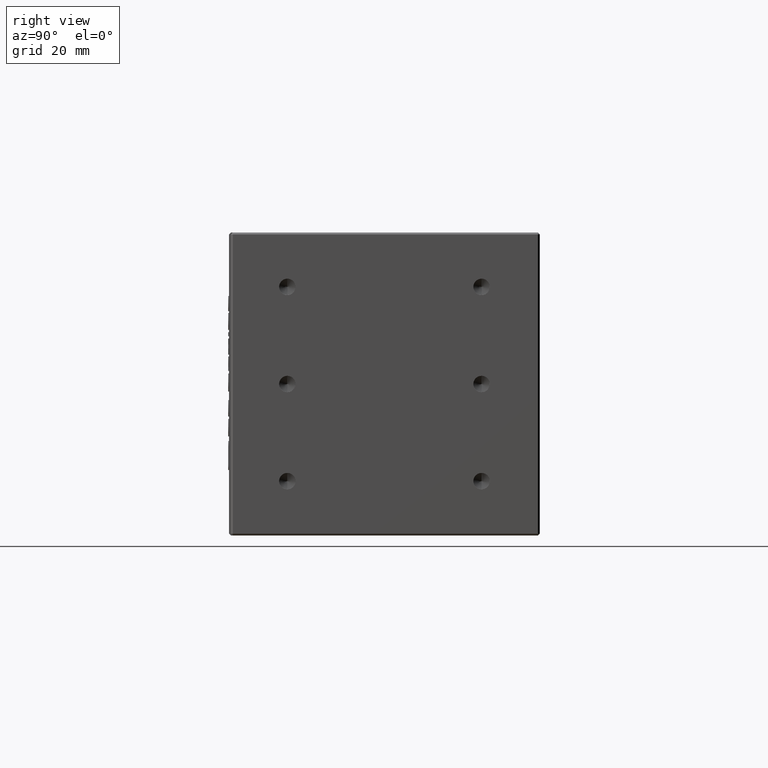
[diagram: clean part render]
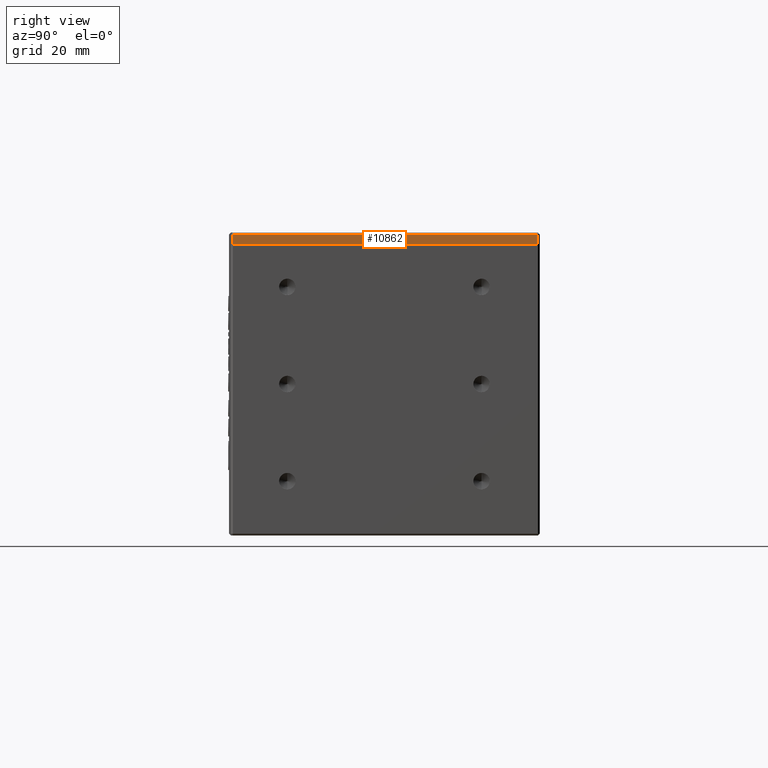
[diagram: same view with one face highlighted and labeled with its STEP entity id]
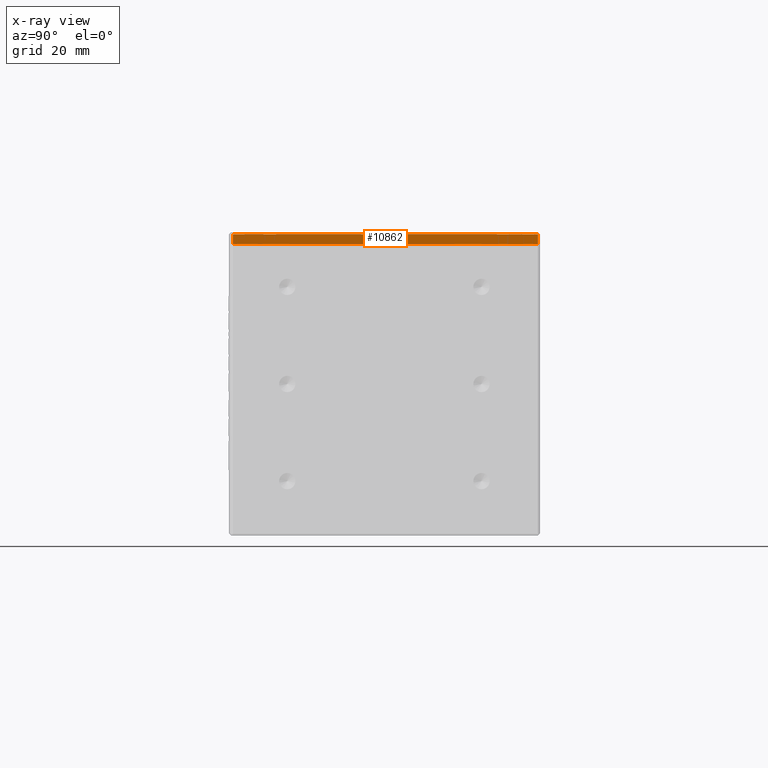
[diagram: x-ray of the same camera — body ghosted, the highlighted face saturated]
A machine part, right view. The second image highlights one B-rep face of the part: STEP entity #10862.
The next image is the same camera in x-ray: the body ghosted, the highlighted face saturated — about 0% of this face is hidden behind the body in this view.
In plain terms, the highlighted planar face has unit normal (-1, 0, 0).
Its self-contained STEP definition (entity closure, byte-faithful):
#1170 = VECTOR ( 'NONE', #46562, 1000.000000000000000 ) ;
#1222 = CARTESIAN_POINT ( 'NONE',  ( 45.03944640265394400, -16.91808924827792300, 78.00000000000955000 ) ) ;
#1978 = CARTESIAN_POINT ( 'NONE',  ( 45.03944640265394400, 62.08191075172209100, 77.50000000000957800 ) ) ;
#2658 = EDGE_CURVE ( 'NONE', #49562, #24932, #35110, .T. ) ;
#2867 = LINE ( 'NONE', #18955, #1170 ) ;
#2922 = VECTOR ( 'NONE', #29368, 1000.000000000000000 ) ;
#5992 = ORIENTED_EDGE ( 'NONE', *, *, #47746, .F. ) ;
#10862 = ADVANCED_FACE ( 'NONE', ( #66202 ), #55438, .F. ) ;
#10930 = ORIENTED_EDGE ( 'NONE', *, *, #22408, .F. ) ;
#11747 = CARTESIAN_POINT ( 'NONE',  ( 45.03944640265394400, -17.41808924827789400, 78.00000000000955000 ) ) ;
#14041 = EDGE_LOOP ( 'NONE', ( #60877, #24410, #10930, #5992 ) ) ;
#16894 = CARTESIAN_POINT ( 'NONE',  ( 45.03944640265394400, 62.08191075172209100, 75.00000000000955000 ) ) ;
#17247 = DIRECTION ( 'NONE',  ( 0.0000000000000000000, 0.0000000000000000000, 1.000000000000000000 ) ) ;
#18955 = CARTESIAN_POINT ( 'NONE',  ( 45.03944640265394400, 61.58191075172212000, 78.00000000000955000 ) ) ;
#21025 = CARTESIAN_POINT ( 'NONE',  ( 45.03944640265394400, -16.91808924827793000, 77.50000000000957800 ) ) ;
#21624 = LINE ( 'NONE', #16894, #49102 ) ;
#22408 = EDGE_CURVE ( 'NONE', #70833, #63739, #2867, .T. ) ;
#24410 = ORIENTED_EDGE ( 'NONE', *, *, #27296, .T. ) ;
#24932 = VERTEX_POINT ( 'NONE', #21025 ) ;
#27296 = EDGE_CURVE ( 'NONE', #49562, #63739, #21624, .T. ) ;
#29089 = CARTESIAN_POINT ( 'NONE',  ( 45.03944640265394400, -16.91808924827792300, 75.00000000000955000 ) ) ;
#29368 = DIRECTION ( 'NONE',  ( -0.0000000000000000000, 1.000000000000000000, 0.0000000000000000000 ) ) ;
#35110 = LINE ( 'NONE', #1222, #62615 ) ;
#46562 = DIRECTION ( 'NONE',  ( -0.0000000000000000000, -0.0000000000000000000, -1.000000000000000000 ) ) ;
#46730 = LINE ( 'NONE', #1978, #2922 ) ;
#47746 = EDGE_CURVE ( 'NONE', #24932, #70833, #46730, .T. ) ;
#49102 = VECTOR ( 'NONE', #60826, 1000.000000000000000 ) ;
#49562 = VERTEX_POINT ( 'NONE', #29089 ) ;
#50118 = DIRECTION ( 'NONE',  ( -1.000000000000000000, 0.0000000000000000000, 0.0000000000000000000 ) ) ;
#55438 = PLANE ( 'NONE',  #66324 ) ;
#60037 = CARTESIAN_POINT ( 'NONE',  ( 45.03944640265394400, 61.58191075172212000, 77.50000000000957800 ) ) ;
#60826 = DIRECTION ( 'NONE',  ( 0.0000000000000000000, 1.000000000000000000, 0.0000000000000000000 ) ) ;
#60877 = ORIENTED_EDGE ( 'NONE', *, *, #2658, .F. ) ;
#62615 = VECTOR ( 'NONE', #67550, 1000.000000000000000 ) ;
#63739 = VERTEX_POINT ( 'NONE', #67091 ) ;
#66202 = FACE_OUTER_BOUND ( 'NONE', #14041, .T. ) ;
#66324 = AXIS2_PLACEMENT_3D ( 'NONE', #11747, #50118, #17247 ) ;
#67091 = CARTESIAN_POINT ( 'NONE',  ( 45.03944640265394400, 61.58191075172212000, 75.00000000000955000 ) ) ;
#67550 = DIRECTION ( 'NONE',  ( 0.0000000000000000000, 0.0000000000000000000, 1.000000000000000000 ) ) ;
#70833 = VERTEX_POINT ( 'NONE', #60037 ) ;